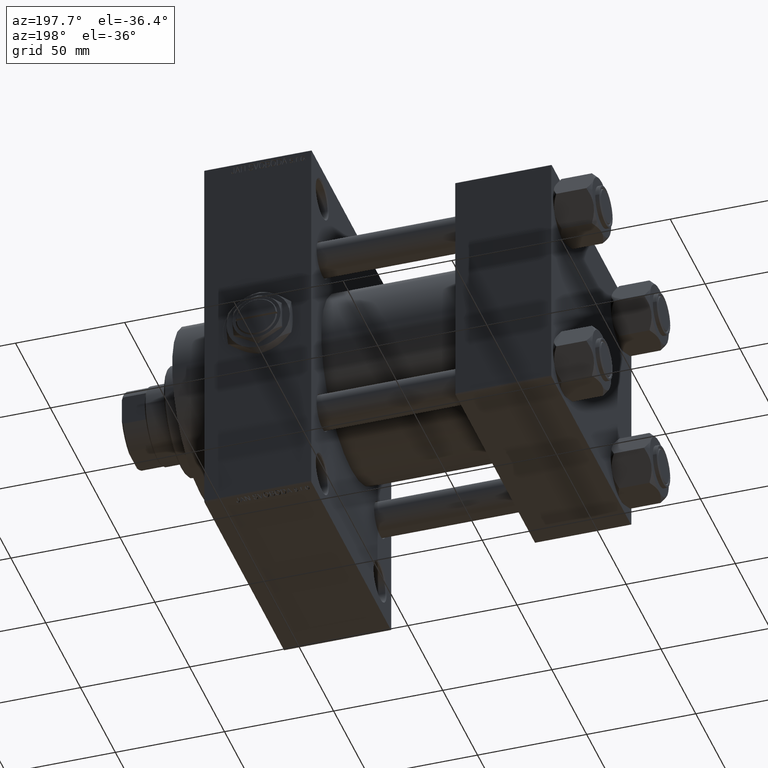
[diagram: clean part render]
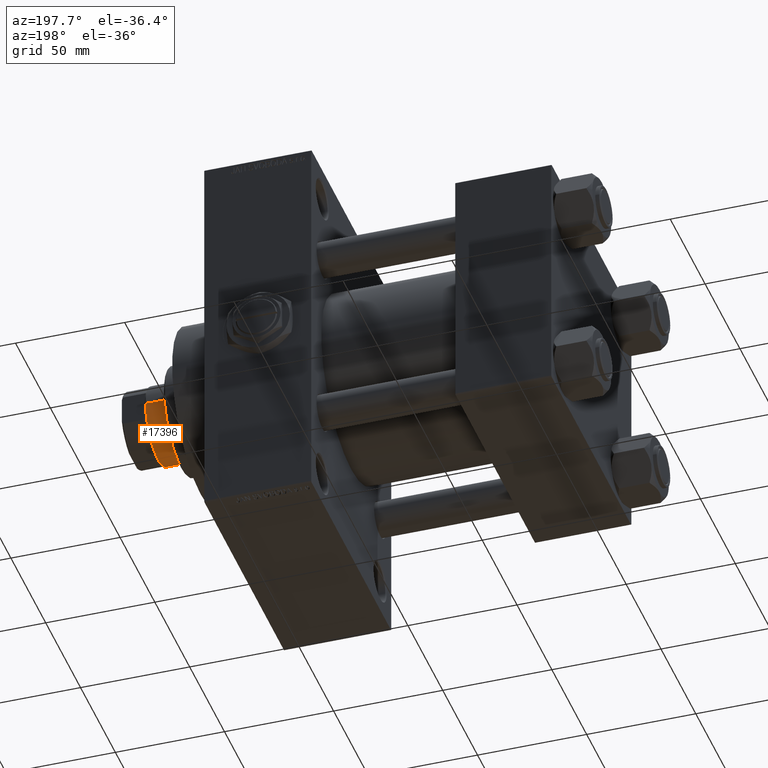
[diagram: same view with one face highlighted and labeled with its STEP entity id]
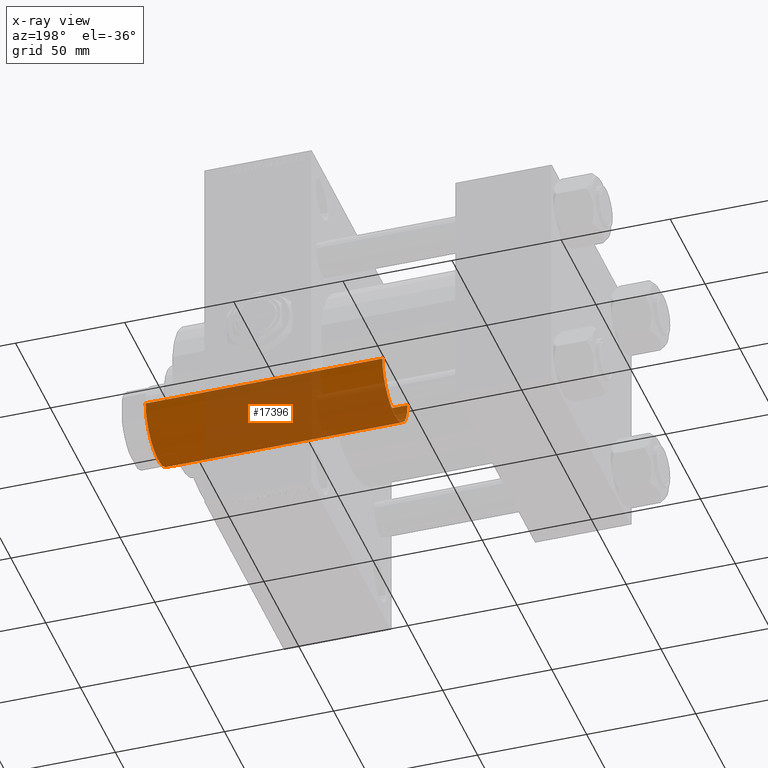
[diagram: x-ray of the same camera — body ghosted, the highlighted face saturated]
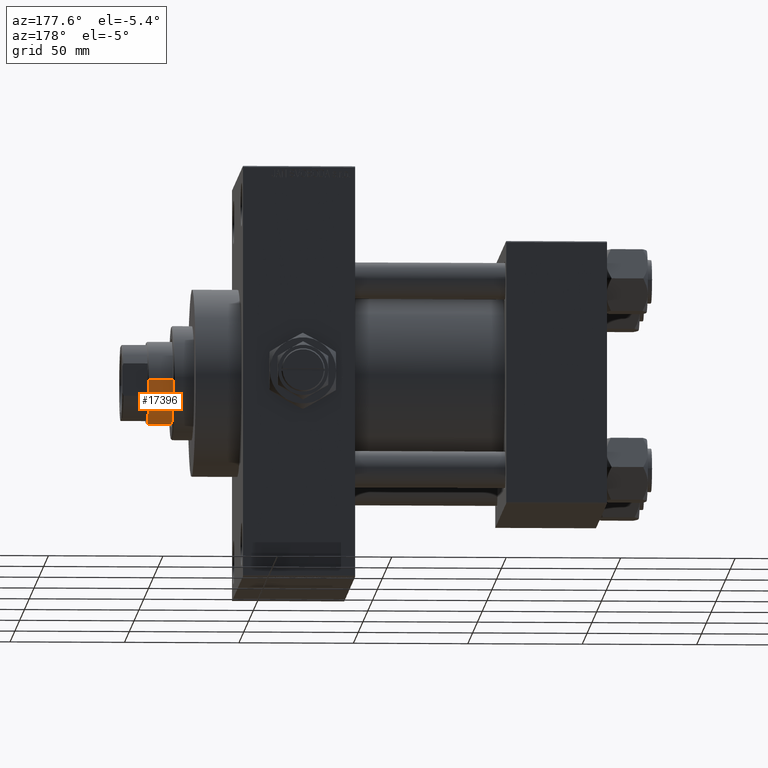
[diagram: same view with one face highlighted and labeled with its STEP entity id]
A machine part, auxiliary view. The second image highlights one B-rep face of the part: STEP entity #17396.
The next image is the same camera in x-ray: the body ghosted, the highlighted face saturated — about 67% of this face is hidden behind the body in this view.
A second angle (auxiliary view) of the same face is appended — the face is thin or edge-on in the first view.
In plain terms, the highlighted cylindrical surface (partial cylindrical patch) has radius 18 mm, axis along (-1, 0, 0).
Its self-contained STEP definition (entity closure, byte-faithful):
#2173 = DIRECTION ( 'NONE',  ( 0.000000000000000000, 0.000000000000000000, -1.000000000000000000 ) ) ;
#5085 = VECTOR ( 'NONE', #44870, 1000.000000000000000 ) ;
#8568 = AXIS2_PLACEMENT_3D ( 'NONE', #42734, #2173, #39977 ) ;
#11375 = DIRECTION ( 'NONE',  ( -1.000000000000000000, 0.000000000000000000, 0.000000000000000000 ) ) ;
#12390 = DIRECTION ( 'NONE',  ( 0.000000000000000000, 0.000000000000000000, 1.000000000000000000 ) ) ;
#14921 = CARTESIAN_POINT ( 'NONE',  ( 18.00000000000000000, 2.204364238465235428E-15, 154.4999999999999716 ) ) ;
#14935 = VERTEX_POINT ( 'NONE', #14921 ) ;
#15515 = LINE ( 'NONE', #23225, #28773 ) ;
#16913 = ORIENTED_EDGE ( 'NONE', *, *, #37487, .F. ) ;
#17261 = CIRCLE ( 'NONE', #18063, 18.00000000000000000 ) ;
#17396 = ADVANCED_FACE ( 'NONE', ( #45463 ), #23307, .T. ) ;
#18063 = AXIS2_PLACEMENT_3D ( 'NONE', #38044, #12390, #23339 ) ;
#21520 = VERTEX_POINT ( 'NONE', #45465 ) ;
#23165 = CARTESIAN_POINT ( 'NONE',  ( 18.00000000000000000, 2.204364238465235428E-15, 46.00000000000000000 ) ) ;
#23225 = CARTESIAN_POINT ( 'NONE',  ( -18.00000000000000000, 0.000000000000000000, 155.0000000000000000 ) ) ;
#23307 = CYLINDRICAL_SURFACE ( 'NONE', #37811, 18.00000000000000000 ) ;
#23339 = DIRECTION ( 'NONE',  ( 1.000000000000000000, 0.000000000000000000, 0.000000000000000000 ) ) ;
#25407 = EDGE_CURVE ( 'NONE', #37694, #28158, #17261, .T. ) ;
#26114 = EDGE_CURVE ( 'NONE', #21520, #14935, #32395, .T. ) ;
#27460 = DIRECTION ( 'NONE',  ( -0.000000000000000000, -0.000000000000000000, -1.000000000000000000 ) ) ;
#28158 = VERTEX_POINT ( 'NONE', #35525 ) ;
#28773 = VECTOR ( 'NONE', #27460, 1000.000000000000000 ) ;
#30286 = CARTESIAN_POINT ( 'NONE',  ( 0.000000000000000000, 0.000000000000000000, 155.0000000000000000 ) ) ;
#32395 = CIRCLE ( 'NONE', #8568, 18.00000000000000000 ) ;
#33424 = CARTESIAN_POINT ( 'NONE',  ( 18.00000000000000000, 2.204364238465235428E-15, 155.0000000000000000 ) ) ;
#33918 = LINE ( 'NONE', #33424, #5085 ) ;
#34026 = DIRECTION ( 'NONE',  ( -0.000000000000000000, -0.000000000000000000, -1.000000000000000000 ) ) ;
#35525 = CARTESIAN_POINT ( 'NONE',  ( -18.00000000000000000, 0.000000000000000000, 46.00000000000000000 ) ) ;
#37487 = EDGE_CURVE ( 'NONE', #21520, #28158, #15515, .T. ) ;
#37694 = VERTEX_POINT ( 'NONE', #23165 ) ;
#37811 = AXIS2_PLACEMENT_3D ( 'NONE', #30286, #34026, #11375 ) ;
#37824 = EDGE_LOOP ( 'NONE', ( #47371, #45643, #47370, #16913 ) ) ;
#38044 = CARTESIAN_POINT ( 'NONE',  ( 0.000000000000000000, 0.000000000000000000, 46.00000000000000000 ) ) ;
#39977 = DIRECTION ( 'NONE',  ( 1.000000000000000000, 0.000000000000000000, 0.000000000000000000 ) ) ;
#42734 = CARTESIAN_POINT ( 'NONE',  ( 0.000000000000000000, 0.000000000000000000, 154.4999999999999716 ) ) ;
#44870 = DIRECTION ( 'NONE',  ( -0.000000000000000000, -0.000000000000000000, -1.000000000000000000 ) ) ;
#45440 = EDGE_CURVE ( 'NONE', #14935, #37694, #33918, .T. ) ;
#45463 = FACE_OUTER_BOUND ( 'NONE', #37824, .T. ) ;
#45465 = CARTESIAN_POINT ( 'NONE',  ( -18.00000000000000000, 0.000000000000000000, 154.4999999999999716 ) ) ;
#45643 = ORIENTED_EDGE ( 'NONE', *, *, #45440, .T. ) ;
#47370 = ORIENTED_EDGE ( 'NONE', *, *, #25407, .T. ) ;
#47371 = ORIENTED_EDGE ( 'NONE', *, *, #26114, .T. ) ;